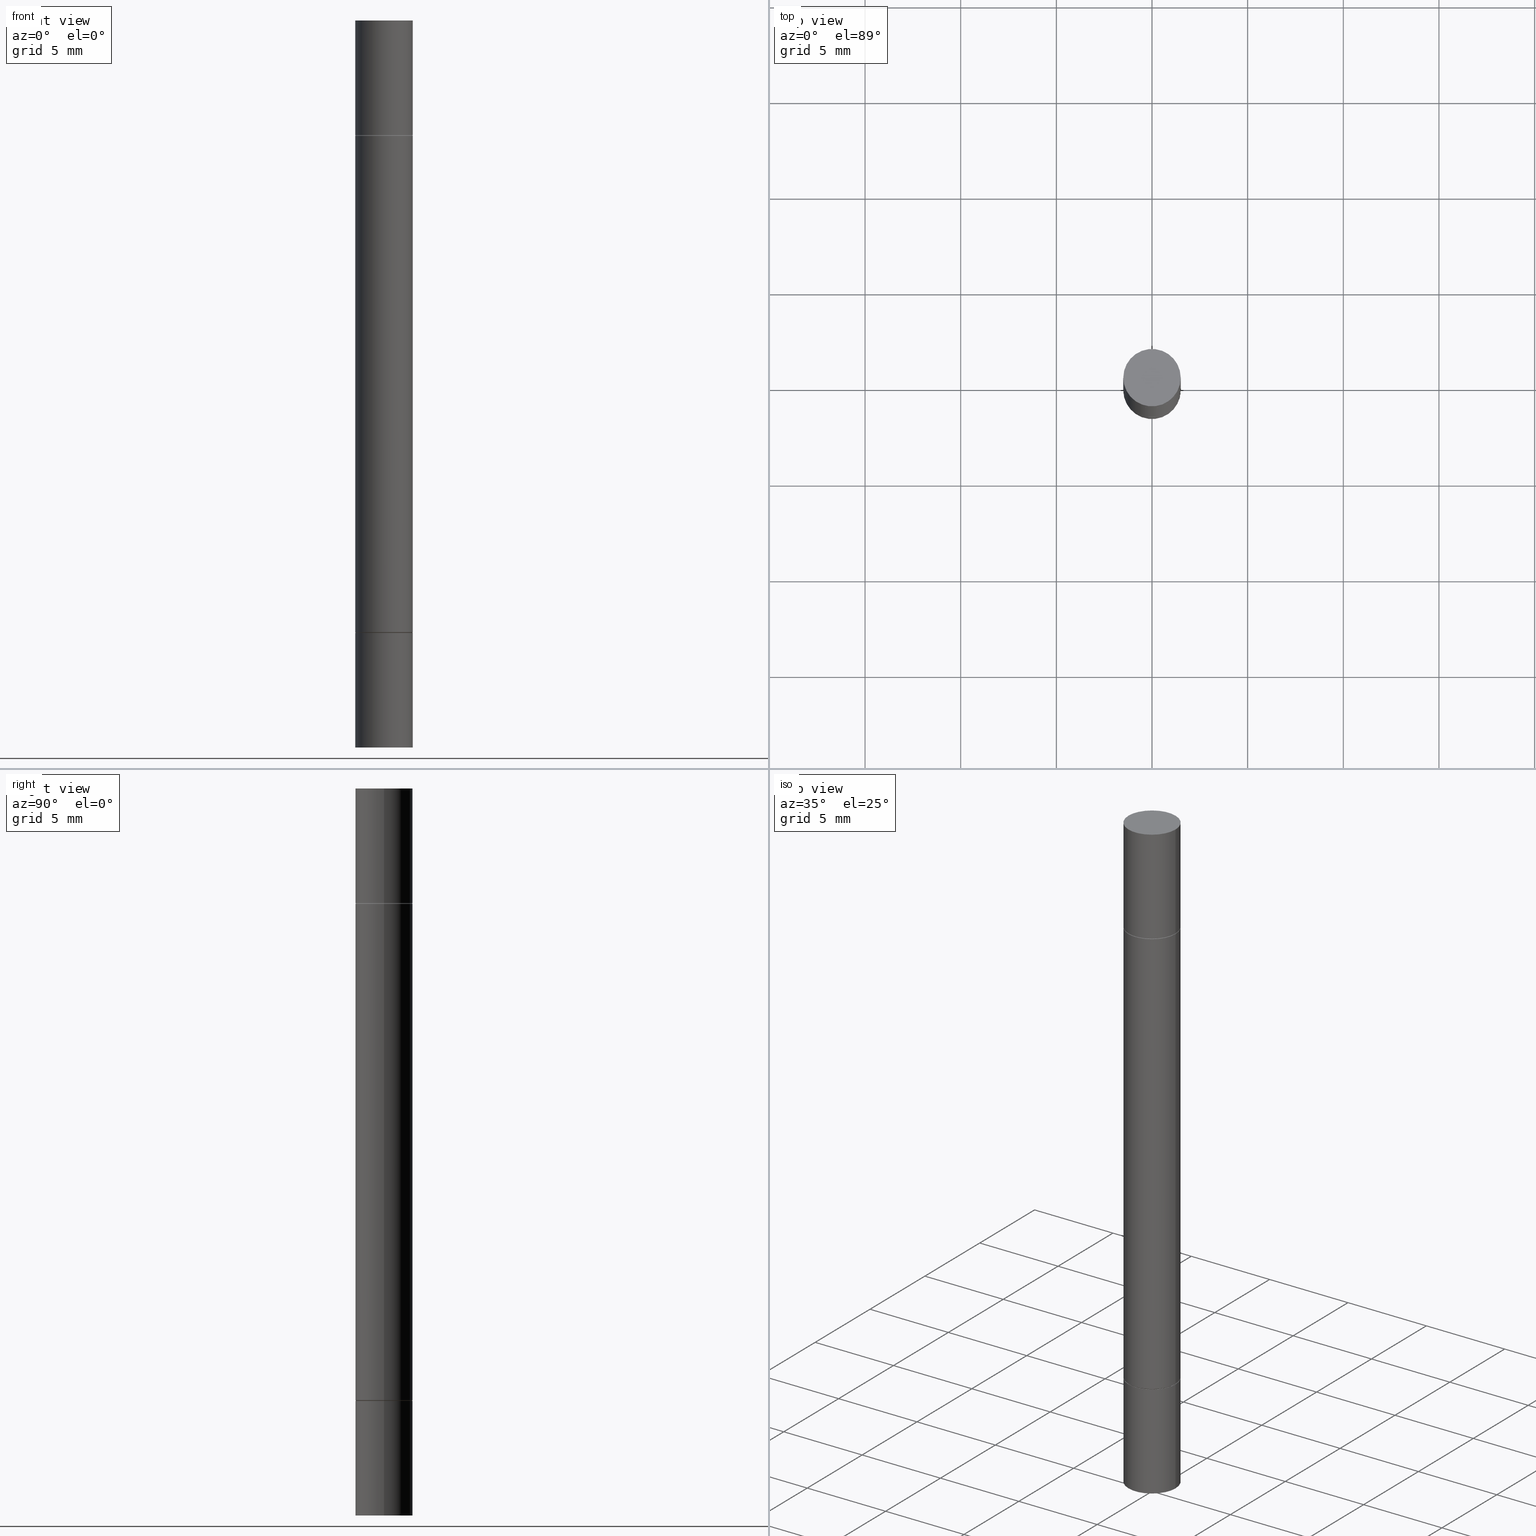
[diagram: canonical four-view strip — front | top / right | iso, engineering-drawing reading convention]
A machine part, canonical four-view strip (front | top / right | iso — engineering-drawing reading convention). The complete STEP part file that produces these views, byte-faithful:
ISO-10303-21;
HEADER;
FILE_DESCRIPTION (( 'STEP AP203' ),
    '1' );
FILE_NAME ('48930.STEP',
    '2024-03-04T15:48:57',
    ( '' ),
    ( '' ),
    'SwSTEP 2.0',
    'SolidWorks 2023',
    '' );
FILE_SCHEMA (( 'CONFIG_CONTROL_DESIGN' ));
ENDSEC;

DATA;
#1 = PERSON_AND_ORGANIZATION ( #473, #292 ) ;
#2 = DIRECTION ( 'NONE',  ( 0.000000000000000000, 0.000000000000000000, 1.000000000000000000 ) ) ;
#3 = FACE_OUTER_BOUND ( 'NONE', #55, .T. ) ;
#4 = DIRECTION ( 'NONE',  ( 1.000000000000000000, -6.982962677686265922E-15, 0.000000000000000000 ) ) ;
#5 = APPROVAL_DATE_TIME ( #542, #309 ) ;
#6 = ADVANCED_FACE ( 'NONE', ( #567 ), #140, .T. ) ;
#7 = CARTESIAN_POINT ( 'NONE',  ( -0.05805000000000001131, -3.981148826351518144E-15, -1.259899999999999798 ) ) ;
#8 = ORIENTED_EDGE ( 'NONE', *, *, #368, .F. ) ;
#9 = AXIS2_PLACEMENT_3D ( 'NONE', #632, #99, #156 ) ;
#10 = CIRCLE ( 'NONE', #403, 0.05904999999999998445 ) ;
#11 = VERTEX_POINT ( 'NONE', #38 ) ;
#12 = DIRECTION ( 'NONE',  ( -0.000000000000000000, -3.492185875197449130E-15, -1.000000000000000000 ) ) ;
#13 = PERSON_AND_ORGANIZATION_ROLE ( 'creator' ) ;
#14 = CARTESIAN_POINT ( 'NONE',  ( -0.05805000000000001131, -3.986447280699740546E-15, -1.259899999999999798 ) ) ;
#15 = ORIENTED_EDGE ( 'NONE', *, *, #216, .F. ) ;
#16 = VERTEX_POINT ( 'NONE', #149 ) ;
#17 = DIRECTION ( 'NONE',  ( 1.000000000000000000, -6.982962677686270655E-15, 0.000000000000000000 ) ) ;
#18 = EDGE_LOOP ( 'NONE', ( #69, #639 ) ) ;
#19 = ORIENTED_EDGE ( 'NONE', *, *, #586, .F. ) ;
#20 = LINE ( 'NONE', #14, #255 ) ;
#21 = ADVANCED_FACE ( 'NONE', ( #247 ), #296, .F. ) ;
#22 = VERTEX_POINT ( 'NONE', #405 ) ;
#23 = AXIS2_PLACEMENT_3D ( 'NONE', #174, #374, #210 ) ;
#24 = EDGE_LOOP ( 'NONE', ( #658, #116, #179, #341 ) ) ;
#25 = CIRCLE ( 'NONE', #616, 0.05805000000000001131 ) ;
#26 = DIRECTION ( 'NONE',  ( 2.445468806185136597E-29, 3.492890411551752677E-15, 1.000000000000000000 ) ) ;
#27 = ORIENTED_EDGE ( 'NONE', *, *, #391, .T. ) ;
#28 = ORIENTED_EDGE ( 'NONE', *, *, #628, .T. ) ;
#29 = FACE_OUTER_BOUND ( 'NONE', #395, .T. ) ;
#30 = DIRECTION ( 'NONE',  ( -2.445468806185136597E-29, 3.491481338843145583E-15, 1.000000000000000000 ) ) ;
#31 = AXIS2_PLACEMENT_3D ( 'NONE', #415, #98, #262 ) ;
#32 = AXIS2_PLACEMENT_3D ( 'NONE', #130, #531, #380 ) ;
#33 = LINE ( 'NONE', #246, #676 ) ;
#34 = EDGE_LOOP ( 'NONE', ( #166, #124, #554, #399 ) ) ;
#35 = FACE_OUTER_BOUND ( 'NONE', #385, .T. ) ;
#36 = DIRECTION ( 'NONE',  ( 2.445468806185136597E-29, 3.492890411551752677E-15, 1.000000000000000000 ) ) ;
#37 = CC_DESIGN_DATE_AND_TIME_ASSIGNMENT ( #158, #154, ( #229 ) ) ;
#38 = CARTESIAN_POINT ( 'NONE',  ( -0.05905000000000001914, -6.343893996178441579E-18, 2.731847993664278010E-16 ) ) ;
#39 = DIRECTION ( 'NONE',  ( 1.000000000000000000, -6.982962677686266711E-15, 0.000000000000000000 ) ) ;
#40 = CARTESIAN_POINT ( 'NONE',  ( 3.081046148912652946E-29, -8.239666583688507762E-16, -0.2361999999999997990 ) ) ;
#41 = AXIS2_PLACEMENT_3D ( 'NONE', #552, #534, #180 ) ;
#42 = PRODUCT_DEFINITION_SHAPE ( 'NONE', 'NONE',  #209 ) ;
#43 = EDGE_CURVE ( 'NONE', #92, #219, #512, .T. ) ;
#44 = ADVANCED_FACE ( 'NONE', ( #356 ), #196, .T. ) ;
#45 = EDGE_CURVE ( 'NONE', #495, #550, #80, .T. ) ;
#46 = CARTESIAN_POINT ( 'NONE',  ( 3.081046148912652946E-29, -8.239666583688507762E-16, -0.2361999999999997990 ) ) ;
#47 = DATE_AND_TIME ( #118, #288 ) ;
#48 = AXIS2_PLACEMENT_3D ( 'NONE', #265, #378, #645 ) ;
#49 = CARTESIAN_POINT ( 'NONE',  ( 3.081046148912652946E-29, -8.239666583688507762E-16, -0.2361999999999997990 ) ) ;
#50 = CARTESIAN_POINT ( 'NONE',  ( 3.658665880933582389E-29, -5.223605231043229660E-15, -1.496099999999999985 ) ) ;
#51 = PERSON_AND_ORGANIZATION_ROLE ( 'creator' ) ;
#52 = DIRECTION ( 'NONE',  ( 2.445468806185136597E-29, 3.492890411551752677E-15, 1.000000000000000000 ) ) ;
#53 = COORDINATED_UNIVERSAL_TIME_OFFSET ( 5, 0, .BEHIND. ) ;
#54 = CARTESIAN_POINT ( 'NONE',  ( -0.05805000000000001131, -4.257147495982133227E-16, -0.2361999999999997990 ) ) ;
#55 = EDGE_LOOP ( 'NONE', ( #173, #640, #436, #8 ) ) ;
#56 = DIRECTION ( 'NONE',  ( 1.000000000000000000, -6.982962677686266711E-15, 0.000000000000000000 ) ) ;
#57 = PERSON_AND_ORGANIZATION_ROLE ( 'design_supplier' ) ;
#58 = FACE_OUTER_BOUND ( 'NONE', #34, .T. ) ;
#59 = ORIENTED_EDGE ( 'NONE', *, *, #400, .F. ) ;
#60 = VECTOR ( 'NONE', #599, 39.37007874015748143 ) ;
#61 = ORIENTED_EDGE ( 'NONE', *, *, #506, .F. ) ;
#62 = CARTESIAN_POINT ( 'NONE',  ( 1.829332940466790914E-29, -2.611802615521614436E-15, -0.7480499999999997707 ) ) ;
#63 = CARTESIAN_POINT ( 'NONE',  ( 0.05805000000000001131, -1.229327641808538597E-15, -0.2361999999999997990 ) ) ;
#64 = VERTEX_POINT ( 'NONE', #250 ) ;
#65 = ORIENTED_EDGE ( 'NONE', *, *, #420, .T. ) ;
#66 = ADVANCED_FACE ( 'NONE', ( #462 ), #411, .T. ) ;
#67 = CARTESIAN_POINT ( 'NONE',  ( 0.05904999999999998445, -1.239803494897776754E-15, -0.2371999999999998554 ) ) ;
#68 = ORIENTED_EDGE ( 'NONE', *, *, #204, .T. ) ;
#69 = ORIENTED_EDGE ( 'NONE', *, *, #563, .F. ) ;
#70 = DIRECTION ( 'NONE',  ( -1.000000000000000000, 6.982962677686265922E-15, -9.839502134516470631E-33 ) ) ;
#71 = VERTEX_POINT ( 'NONE', #559 ) ;
#72 = VECTOR ( 'NONE', #451, 39.37007874015748143 ) ;
#73 = ORIENTED_EDGE ( 'NONE', *, *, #354, .T. ) ;
#74 = CIRCLE ( 'NONE', #276, 0.05905000000000001914 ) ;
#75 = DIRECTION ( 'NONE',  ( -2.445468806185136877E-29, -3.492890411551753071E-15, -1.000000000000000000 ) ) ;
#76 = CARTESIAN_POINT ( 'NONE',  ( 0.000000000000000000, -5.224659287882902542E-15, -1.496099999999999541 ) ) ;
#77 = DIRECTION ( 'NONE',  ( 1.000000000000000000, -6.982962677686266711E-15, 0.000000000000000000 ) ) ;
#78 = EDGE_LOOP ( 'NONE', ( #650, #346, #115, #445 ) ) ;
#79 = DIRECTION ( 'NONE',  ( 2.445468806185136597E-29, 3.492890411551752677E-15, 1.000000000000000000 ) ) ;
#80 = LINE ( 'NONE', #301, #358 ) ;
#81 = AXIS2_PLACEMENT_3D ( 'NONE', #665, #322, #150 ) ;
#82 = AXIS2_PLACEMENT_3D ( 'NONE', #187, #305, #515 ) ;
#83 = CC_DESIGN_DATE_AND_TIME_ASSIGNMENT ( #47, #169, ( #209 ) ) ;
#84 = EDGE_CURVE ( 'NONE', #16, #504, #90, .T. ) ;
#85 = PLANE ( 'NONE',  #82 ) ;
#86 = VERTEX_POINT ( 'NONE', #574 ) ;
#87 = CARTESIAN_POINT ( 'NONE',  ( 3.081046148912652946E-29, -8.239666583688507762E-16, -0.2361999999999997990 ) ) ;
#88 = UNCERTAINTY_MEASURE_WITH_UNIT (LENGTH_MEASURE( 1.000000000000000082E-05 ), #679, 'distance_accuracy_value', 'NONE');
#89 = DIRECTION ( 'NONE',  ( 1.000000000000000000, -6.982962677686266711E-15, 0.000000000000000000 ) ) ;
#90 = LINE ( 'NONE', #236, #72 ) ;
#91 = CARTESIAN_POINT ( 'NONE',  ( 3.081046148912652946E-29, -8.239666583688507762E-16, -0.2361999999999997990 ) ) ;
#92 = VERTEX_POINT ( 'NONE', #520 ) ;
#93 = AXIS2_PLACEMENT_3D ( 'NONE', #46, #460, #359 ) ;
#94 = AXIS2_PLACEMENT_3D ( 'NONE', #360, #569, #518 ) ;
#95 = APPLICATION_PROTOCOL_DEFINITION ( 'international standard', 'config_control_design', 1994, #549 ) ;
#96 = ADVANCED_FACE ( 'NONE', ( #365 ), #426, .T. ) ;
#97 = APPLICATION_PROTOCOL_DEFINITION ( 'international standard', 'config_control_design', 1994, #362 ) ;
#98 = DIRECTION ( 'NONE',  ( -2.445468806185136597E-29, -3.492890411551752677E-15, -1.000000000000000000 ) ) ;
#99 = DIRECTION ( 'NONE',  ( -2.438088387897959769E-29, -3.492890411551753071E-15, -1.000000000000000000 ) ) ;
#100 = PERSON_AND_ORGANIZATION ( #473, #292 ) ;
#101 = LINE ( 'NONE', #203, #261 ) ;
#102 = DIRECTION ( 'NONE',  ( 1.000000000000000000, -6.982962677686265922E-15, 0.000000000000000000 ) ) ;
#103 = ORIENTED_EDGE ( 'NONE', *, *, #459, .F. ) ;
#104 = CC_DESIGN_APPROVAL ( #525, ( #229 ) ) ;
#105 = APPROVAL ( #294, 'UNSPECIFIED' ) ;
#106 =( NAMED_UNIT ( * ) PLANE_ANGLE_UNIT ( ) SI_UNIT ( $, .RADIAN. ) );
#107 =( GEOMETRIC_REPRESENTATION_CONTEXT ( 3 ) GLOBAL_UNCERTAINTY_ASSIGNED_CONTEXT ( ( #88 ) ) GLOBAL_UNIT_ASSIGNED_CONTEXT ( ( #679, #106, #419 ) ) REPRESENTATION_CONTEXT ( 'NONE', 'WORKASPACE' ) );
#108 = DIRECTION ( 'NONE',  ( -2.445468806185136877E-29, -3.492890411551753071E-15, -1.000000000000000000 ) ) ;
#109 = DIRECTION ( 'NONE',  ( 2.445468806185136597E-29, 3.492890411551752677E-15, 1.000000000000000000 ) ) ;
#110 = ORIENTED_EDGE ( 'NONE', *, *, #391, .F. ) ;
#111 = FACE_OUTER_BOUND ( 'NONE', #537, .T. ) ;
#112 = APPROVAL_DATE_TIME ( #267, #105 ) ;
#113 = MANIFOLD_SOLID_BREP ( 'Body-Move/Copy2[1]', #230 ) ;
#114 = CARTESIAN_POINT ( 'NONE',  ( -0.05805000000000001131, -4.240309458051036863E-16, -0.2361999999999997990 ) ) ;
#115 = ORIENTED_EDGE ( 'NONE', *, *, #354, .F. ) ;
#116 = ORIENTED_EDGE ( 'NONE', *, *, #479, .F. ) ;
#117 = MANIFOLD_SOLID_BREP ( 'Combine1', #313 ) ;
#118 = CALENDAR_DATE ( 2024, 4, 3 ) ;
#119 = CC_DESIGN_SECURITY_CLASSIFICATION ( #229, ( #456 ) ) ;
#120 = CONICAL_SURFACE ( 'NONE', #536, 0.05805000000000001131, 0.7853981633973970977 ) ;
#121 = DIRECTION ( 'NONE',  ( -2.445468806185136597E-29, 3.491481338843145583E-15, 1.000000000000000000 ) ) ;
#122 = EDGE_LOOP ( 'NONE', ( #278, #386 ) ) ;
#123 = AXIS2_PLACEMENT_3D ( 'NONE', #231, #450, #17 ) ;
#124 = ORIENTED_EDGE ( 'NONE', *, *, #506, .T. ) ;
#125 = ADVANCED_FACE ( 'NONE', ( #253 ), #466, .F. ) ;
#126 = CARTESIAN_POINT ( 'NONE',  ( 3.081046148912652946E-29, -8.239666583688507762E-16, -0.2361999999999997990 ) ) ;
#127 = DIRECTION ( 'NONE',  ( 1.000000000000000000, -6.982962677686266711E-15, 0.000000000000000000 ) ) ;
#128 = ORIENTED_EDGE ( 'NONE', *, *, #493, .F. ) ;
#129 = ORIENTED_EDGE ( 'NONE', *, *, #45, .F. ) ;
#130 = CARTESIAN_POINT ( 'NONE',  ( 3.078600680106467904E-29, -8.274595487804013404E-16, -0.2371999999999998554 ) ) ;
#131 = ORIENTED_EDGE ( 'NONE', *, *, #271, .T. ) ;
#132 = VERTEX_POINT ( 'NONE', #652 ) ;
#133 = CARTESIAN_POINT ( 'NONE',  ( 4.123439461174049462E-16, 0.05904999999999561988, -1.259900000000000020 ) ) ;
#134 = APPROVAL_PERSON_ORGANIZATION ( #1, #309, #212 ) ;
#135 = DIRECTION ( 'NONE',  ( -2.445468806185136597E-29, -3.492890411551752677E-15, -1.000000000000000000 ) ) ;
#136 = CIRCLE ( 'NONE', #214, 0.05905000000000001914 ) ;
#137 = AXIS2_PLACEMENT_3D ( 'NONE', #139, #560, #195 ) ;
#138 = ADVANCED_FACE ( 'NONE', ( #238 ), #609, .T. ) ;
#139 = CARTESIAN_POINT ( 'NONE',  ( 0.000000000000000000, -5.224659287882902542E-15, -1.496099999999999541 ) ) ;
#140 = CYLINDRICAL_SURFACE ( 'NONE', #649, 0.05905000000000001914 ) ;
#141 = CARTESIAN_POINT ( 'NONE',  ( -0.05905000000000001914, -4.391685799459515247E-15, -1.259899999999999798 ) ) ;
#142 = DIRECTION ( 'NONE',  ( -2.445468806185136877E-29, -3.492890411551753071E-15, -1.000000000000000000 ) ) ;
#143 = DIRECTION ( 'NONE',  ( 1.000000000000000000, -6.982962677686258033E-15, 0.000000000000000000 ) ) ;
#144 = CARTESIAN_POINT ( 'NONE',  ( 0.05905000000000001914, -4.112898892776993753E-16, 2.731847993664263218E-16 ) ) ;
#145 = CIRCLE ( 'NONE', #433, 0.05805000000000001131 ) ;
#146 = EDGE_CURVE ( 'NONE', #71, #22, #275, .T. ) ;
#147 = AXIS2_PLACEMENT_3D ( 'NONE', #431, #307, #39 ) ;
#148 = DIRECTION ( 'NONE',  ( 1.000000000000000000, -6.982962677686265922E-15, 4.876176775795935793E-29 ) ) ;
#149 = CARTESIAN_POINT ( 'NONE',  ( 0.05805000000000001131, -1.229327641808538597E-15, -0.2361999999999997990 ) ) ;
#150 = DIRECTION ( 'NONE',  ( 1.000000000000000000, -6.982962677686266711E-15, 0.000000000000000000 ) ) ;
#151 = EDGE_CURVE ( 'NONE', #11, #291, #321, .T. ) ;
#152 = AXIS2_PLACEMENT_3D ( 'NONE', #126, #540, #4 ) ;
#153 = CIRCLE ( 'NONE', #206, 0.05805000000000001131 ) ;
#154 = DATE_TIME_ROLE ( 'classification_date' ) ;
#155 = DIRECTION ( 'NONE',  ( 2.445468806185136597E-29, 3.492890411551752677E-15, 1.000000000000000000 ) ) ;
#156 = DIRECTION ( 'NONE',  ( 1.000000000000000000, -6.982962677686265922E-15, 9.839502134516470631E-33 ) ) ;
#157 = FACE_OUTER_BOUND ( 'NONE', #122, .T. ) ;
#158 = DATE_AND_TIME ( #631, #519 ) ;
#159 = AXIS2_PLACEMENT_3D ( 'NONE', #349, #618, #570 ) ;
#160 = VECTOR ( 'NONE', #494, 39.37007874015748143 ) ;
#161 = DIRECTION ( 'NONE',  ( 1.000000000000000000, -6.982962677686266711E-15, 0.000000000000000000 ) ) ;
#162 = ORIENTED_EDGE ( 'NONE', *, *, #417, .T. ) ;
#163 = DIRECTION ( 'NONE',  ( -2.445468806185136597E-29, 3.491481338843145583E-15, 1.000000000000000000 ) ) ;
#164 = CALENDAR_DATE ( 2024, 4, 3 ) ;
#165 = DIRECTION ( 'NONE',  ( 2.438088387897959769E-29, 3.492890411551753071E-15, 1.000000000000000000 ) ) ;
#166 = ORIENTED_EDGE ( 'NONE', *, *, #151, .F. ) ;
#167 = ORIENTED_EDGE ( 'NONE', *, *, #319, .F. ) ;
#168 = CARTESIAN_POINT ( 'NONE',  ( 3.081046148912652946E-29, -4.398917338808479031E-15, -1.259899999999999798 ) ) ;
#169 = DATE_TIME_ROLE ( 'creation_date' ) ;
#170 = FACE_OUTER_BOUND ( 'NONE', #281, .T. ) ;
#171 = ADVANCED_FACE ( 'NONE', ( #428 ), #624, .T. ) ;
#172 = ORIENTED_EDGE ( 'NONE', *, *, #470, .F. ) ;
#173 = ORIENTED_EDGE ( 'NONE', *, *, #256, .F. ) ;
#174 = CARTESIAN_POINT ( 'NONE',  ( 4.123439461174106654E-16, 0.05905000000000001914, 0.000000000000000000 ) ) ;
#175 = CLOSED_SHELL ( 'NONE', ( #138, #324, #21, #125, #184, #526 ) ) ;
#176 = CARTESIAN_POINT ( 'NONE',  ( 3.078600680106467904E-29, -4.395425857469635235E-15, -1.258899999999999686 ) ) ;
#177 = ORIENTED_EDGE ( 'NONE', *, *, #463, .F. ) ;
#178 = CIRCLE ( 'NONE', #94, 0.05904999999999991506 ) ;
#179 = ORIENTED_EDGE ( 'NONE', *, *, #43, .T. ) ;
#180 = DIRECTION ( 'NONE',  ( 1.000000000000000000, -6.982962677686270655E-15, 0.000000000000000000 ) ) ;
#181 = ORIENTED_EDGE ( 'NONE', *, *, #216, .T. ) ;
#182 = ORIENTED_EDGE ( 'NONE', *, *, #463, .T. ) ;
#183 = CC_DESIGN_PERSON_AND_ORGANIZATION_ASSIGNMENT ( #369, #424, ( #229 ) ) ;
#184 = ADVANCED_FACE ( 'NONE', ( #678 ), #366, .T. ) ;
#185 = CARTESIAN_POINT ( 'NONE',  ( 3.658665880933582389E-29, 1.054056839674803370E-18, 2.731847993664263218E-16 ) ) ;
#186 = ORIENTED_EDGE ( 'NONE', *, *, #257, .F. ) ;
#187 = CARTESIAN_POINT ( 'NONE',  ( 4.123439461174049462E-16, 0.05904999999999919341, -0.2362000000000000766 ) ) ;
#188 = LOCAL_TIME ( 10, 48, 57.00000000000000000, #434 ) ;
#189 = AXIS2_PLACEMENT_3D ( 'NONE', #76, #135, #562 ) ;
#190 = AXIS2_PLACEMENT_3D ( 'NONE', #185, #26, #226 ) ;
#191 = FACE_OUTER_BOUND ( 'NONE', #381, .T. ) ;
#192 = DIRECTION ( 'NONE',  ( 0.000000000000000000, 1.000000000000000000, -3.492185875197449524E-15 ) ) ;
#193 = ADVANCED_FACE ( 'NONE', ( #157 ), #636, .T. ) ;
#194 = DIRECTION ( 'NONE',  ( -2.445468806185136597E-29, 3.491481338843145583E-15, 1.000000000000000000 ) ) ;
#195 = DIRECTION ( 'NONE',  ( 1.000000000000000000, -6.982962677686266711E-15, 0.000000000000000000 ) ) ;
#196 = CYLINDRICAL_SURFACE ( 'NONE', #189, 0.05905000000000001914 ) ;
#197 = ADVANCED_FACE ( 'NONE', ( #111 ), #528, .T. ) ;
#198 = FACE_OUTER_BOUND ( 'NONE', #485, .T. ) ;
#199 = FACE_OUTER_BOUND ( 'NONE', #444, .T. ) ;
#200 = CIRCLE ( 'NONE', #467, 0.05905000000000001914 ) ;
#201 = FACE_OUTER_BOUND ( 'NONE', #505, .T. ) ;
#202 = EDGE_CURVE ( 'NONE', #550, #86, #593, .T. ) ;
#203 = CARTESIAN_POINT ( 'NONE',  ( 0.05905000000000001914, -5.637003234000276674E-15, -1.496099999999999541 ) ) ;
#204 = EDGE_CURVE ( 'NONE', #345, #498, #145, .T. ) ;
#205 = CIRCLE ( 'NONE', #674, 0.05905000000000001914 ) ;
#206 = AXIS2_PLACEMENT_3D ( 'NONE', #503, #653, #336 ) ;
#207 = SHAPE_DEFINITION_REPRESENTATION ( #42, #283 ) ;
#208 = CARTESIAN_POINT ( 'NONE',  ( 3.078600680106467904E-29, -8.274595487804013404E-16, -0.2371999999999998554 ) ) ;
#209 = PRODUCT_DEFINITION ( 'UNKNOWN', '', #456, #615 ) ;
#210 = DIRECTION ( 'NONE',  ( -1.000000000000000000, 6.982962677686265922E-15, -9.839502134516470631E-33 ) ) ;
#211 = LINE ( 'NONE', #568, #509 ) ;
#212 = APPROVAL_ROLE ( '' ) ;
#213 = CYLINDRICAL_SURFACE ( 'NONE', #147, 0.05904999999999991506 ) ;
#214 = AXIS2_PLACEMENT_3D ( 'NONE', #248, #363, #260 ) ;
#215 = AXIS2_PLACEMENT_3D ( 'NONE', #352, #30, #457 ) ;
#216 = EDGE_CURVE ( 'NONE', #232, #92, #200, .T. ) ;
#217 = DIRECTION ( 'NONE',  ( 2.445468806185136597E-29, 3.492890411551752677E-15, 1.000000000000000000 ) ) ;
#218 = ORIENTED_EDGE ( 'NONE', *, *, #417, .F. ) ;
#219 = VERTEX_POINT ( 'NONE', #413 ) ;
#220 = PERSON_AND_ORGANIZATION ( #473, #292 ) ;
#221 = ADVANCED_FACE ( 'NONE', ( #513 ), #630, .F. ) ;
#222 = DIRECTION ( 'NONE',  ( -0.7071067811865112684, 7.493145998870223209E-15, 0.7071067811865837660 ) ) ;
#223 = ORIENTED_EDGE ( 'NONE', *, *, #343, .F. ) ;
#224 = ORIENTED_EDGE ( 'NONE', *, *, #202, .F. ) ;
#225 = DIRECTION ( 'NONE',  ( 1.000000000000000000, -6.982962677686270655E-15, 0.000000000000000000 ) ) ;
#226 = DIRECTION ( 'NONE',  ( 1.000000000000000000, -6.982962677686266711E-15, 0.000000000000000000 ) ) ;
#227 = ORIENTED_EDGE ( 'NONE', *, *, #43, .F. ) ;
#228 = EDGE_LOOP ( 'NONE', ( #282, #28 ) ) ;
#229 = SECURITY_CLASSIFICATION ( '', '', #379 ) ;
#230 = CLOSED_SHELL ( 'NONE', ( #522, #66, #671, #6 ) ) ;
#231 = CARTESIAN_POINT ( 'NONE',  ( 0.000000000000000000, -5.224659287882902542E-15, -1.496099999999999541 ) ) ;
#232 = VERTEX_POINT ( 'NONE', #376 ) ;
#233 = AXIS2_PLACEMENT_3D ( 'NONE', #558, #249, #77 ) ;
#234 = ORIENTED_EDGE ( 'NONE', *, *, #271, .F. ) ;
#235 = LINE ( 'NONE', #63, #60 ) ;
#236 = CARTESIAN_POINT ( 'NONE',  ( 0.05805000000000001131, -1.229327641808538597E-15, -0.2361999999999997990 ) ) ;
#237 = VERTEX_POINT ( 'NONE', #318 ) ;
#238 = FACE_OUTER_BOUND ( 'NONE', #553, .T. ) ;
#239 = CARTESIAN_POINT ( 'NONE',  ( -0.05905000000000001914, -4.819546881114493773E-15, -1.496099999999999541 ) ) ;
#240 = CYLINDRICAL_SURFACE ( 'NONE', #137, 0.05904999999999991506 ) ;
#241 = DIRECTION ( 'NONE',  ( 0.000000000000000000, 3.492185875197449524E-15, 1.000000000000000000 ) ) ;
#242 = AXIS2_PLACEMENT_3D ( 'NONE', #677, #266, #478 ) ;
#243 = CIRCLE ( 'NONE', #242, 0.05904999999999998445 ) ;
#244 = AXIS2_PLACEMENT_3D ( 'NONE', #176, #121, #328 ) ;
#245 = EDGE_CURVE ( 'NONE', #232, #132, #475, .T. ) ;
#246 = CARTESIAN_POINT ( 'NONE',  ( -0.05904999999999991506, -4.819546881114493773E-15, -1.496099999999999541 ) ) ;
#247 = FACE_OUTER_BOUND ( 'NONE', #228, .T. ) ;
#248 = CARTESIAN_POINT ( 'NONE',  ( 3.658665880933582389E-29, -5.223605231043229660E-15, -1.496099999999999985 ) ) ;
#249 = DIRECTION ( 'NONE',  ( -2.445468806185136597E-29, -3.492890411551752677E-15, -1.000000000000000000 ) ) ;
#250 = CARTESIAN_POINT ( 'NONE',  ( -0.05904999999999998445, -2.206690208753203299E-15, -1.258899999999999686 ) ) ;
#251 = DIRECTION ( 'NONE',  ( -1.000000000000000000, 6.982962677686265922E-15, -9.839502134516470631E-33 ) ) ;
#252 = DIRECTION ( 'NONE',  ( 1.000000000000000000, -6.982962677686265922E-15, 0.000000000000000000 ) ) ;
#253 = FACE_OUTER_BOUND ( 'NONE', #407, .T. ) ;
#254 = CIRCLE ( 'NONE', #81, 0.05905000000000001914 ) ;
#255 = VECTOR ( 'NONE', #222, 39.37007874015748143 ) ;
#256 = EDGE_CURVE ( 'NONE', #237, #504, #556, .T. ) ;
#257 = EDGE_CURVE ( 'NONE', #219, #132, #254, .T. ) ;
#258 = MECHANICAL_CONTEXT ( 'NONE', #549, 'mechanical' ) ;
#259 = DATE_AND_TIME ( #489, #272 ) ;
#260 = DIRECTION ( 'NONE',  ( 1.000000000000000000, -6.982962677686270655E-15, 0.000000000000000000 ) ) ;
#261 = VECTOR ( 'NONE', #416, 39.37007874015748143 ) ;
#262 = DIRECTION ( 'NONE',  ( 1.000000000000000000, -6.982962677686270655E-15, 0.000000000000000000 ) ) ;
#263 = ADVANCED_FACE ( 'NONE', ( #35 ), #634, .T. ) ;
#264 = DIRECTION ( 'NONE',  ( -2.445468806185136597E-29, -3.492890411551752677E-15, -1.000000000000000000 ) ) ;
#265 = CARTESIAN_POINT ( 'NONE',  ( 3.081046148912652946E-29, -8.239666583688507762E-16, -0.2361999999999997990 ) ) ;
#266 = DIRECTION ( 'NONE',  ( 2.445468806185136597E-29, 3.492890411551752677E-15, 1.000000000000000000 ) ) ;
#267 = DATE_AND_TIME ( #164, #486 ) ;
#268 = CYLINDRICAL_SURFACE ( 'NONE', #123, 0.05905000000000001914 ) ;
#269 = ORIENTED_EDGE ( 'NONE', *, *, #84, .T. ) ;
#270 = ORIENTED_EDGE ( 'NONE', *, *, #429, .T. ) ;
#271 = EDGE_CURVE ( 'NONE', #16, #382, #422, .T. ) ;
#272 = LOCAL_TIME ( 10, 48, 57.00000000000000000, #590 ) ;
#273 = CARTESIAN_POINT ( 'NONE',  ( 3.081046148912652946E-29, -4.398917338808479031E-15, -1.259899999999999798 ) ) ;
#274 = APPROVAL_ROLE ( '' ) ;
#275 = CIRCLE ( 'NONE', #564, 0.05905000000000001914 ) ;
#276 = AXIS2_PLACEMENT_3D ( 'NONE', #285, #109, #435 ) ;
#277 = CARTESIAN_POINT ( 'NONE',  ( 0.05805000000000001131, -4.804278322248167148E-15, -1.259899999999999798 ) ) ;
#278 = ORIENTED_EDGE ( 'NONE', *, *, #400, .T. ) ;
#279 = ORIENTED_EDGE ( 'NONE', *, *, #351, .F. ) ;
#280 = LINE ( 'NONE', #277, #557 ) ;
#281 = EDGE_LOOP ( 'NONE', ( #15, #594, #182, #227 ) ) ;
#282 = ORIENTED_EDGE ( 'NONE', *, *, #202, .T. ) ;
#283 = ADVANCED_BREP_SHAPE_REPRESENTATION ( '48930', ( #113, #364, #589, #339, #117, #580 ), #107 ) ;
#284 = CC_DESIGN_PERSON_AND_ORGANIZATION_ASSIGNMENT ( #430, #13, ( #456 ) ) ;
#285 = CARTESIAN_POINT ( 'NONE',  ( 3.658665880933582389E-29, 1.054056839674803370E-18, 2.731847993664263218E-16 ) ) ;
#286 = ORIENTED_EDGE ( 'NONE', *, *, #443, .T. ) ;
#287 = VERTEX_POINT ( 'NONE', #409 ) ;
#288 = LOCAL_TIME ( 10, 48, 57.00000000000000000, #641 ) ;
#289 = CLOSED_SHELL ( 'NONE', ( #393, #193, #622, #44 ) ) ;
#290 = LINE ( 'NONE', #490, #160 ) ;
#291 = VERTEX_POINT ( 'NONE', #144 ) ;
#292 = ORGANIZATION ( 'UNSPECIFIED', 'UNSPECIFIED', '' ) ;
#293 = ORIENTED_EDGE ( 'NONE', *, *, #480, .F. ) ;
#294 = APPROVAL_STATUS ( 'not_yet_approved' ) ;
#295 = LINE ( 'NONE', #561, #651 ) ;
#296 = PLANE ( 'NONE',  #412 ) ;
#297 = CARTESIAN_POINT ( 'NONE',  ( 0.05905000000000001914, -1.236310604486225006E-15, -0.2361999999999997990 ) ) ;
#298 = DIRECTION ( 'NONE',  ( 1.000000000000000000, -6.982962677686266711E-15, 4.876176775795935793E-29 ) ) ;
#299 = ADVANCED_FACE ( 'NONE', ( #578 ), #575, .F. ) ;
#300 = DIRECTION ( 'NONE',  ( 2.445468806185136597E-29, 3.492890411551752677E-15, 1.000000000000000000 ) ) ;
#301 = CARTESIAN_POINT ( 'NONE',  ( 0.05904999999999991506, -5.637003234000275885E-15, -1.496099999999999541 ) ) ;
#302 = AXIS2_PLACEMENT_3D ( 'NONE', #87, #155, #102 ) ;
#303 = AXIS2_PLACEMENT_3D ( 'NONE', #308, #666, #404 ) ;
#304 = DIRECTION ( 'NONE',  ( -2.445468806185136597E-29, 3.491481338843145583E-15, 1.000000000000000000 ) ) ;
#305 = DIRECTION ( 'NONE',  ( 2.438088387897959769E-29, 3.492890411551753071E-15, 1.000000000000000000 ) ) ;
#306 = CARTESIAN_POINT ( 'NONE',  ( 0.05905000000000001914, -5.637003234000276674E-15, -1.496099999999999541 ) ) ;
#307 = DIRECTION ( 'NONE',  ( -2.445468806185136597E-29, -3.492890411551752677E-15, -1.000000000000000000 ) ) ;
#308 = CARTESIAN_POINT ( 'NONE',  ( 3.081046148912652946E-29, -8.239666583688507762E-16, -0.2361999999999997990 ) ) ;
#309 = APPROVAL ( #673, 'UNSPECIFIED' ) ;
#310 = EDGE_CURVE ( 'NONE', #22, #71, #136, .T. ) ;
#311 = DIRECTION ( 'NONE',  ( -2.438088387897959769E-29, -3.492890411551753071E-15, -1.000000000000000000 ) ) ;
#312 = CC_DESIGN_APPROVAL ( #309, ( #456 ) ) ;
#313 = CLOSED_SHELL ( 'NONE', ( #197, #361, #171, #221, #576, #514, #263, #612 ) ) ;
#314 = AXIS2_PLACEMENT_3D ( 'NONE', #62, #12, #629 ) ;
#315 = AXIS2_PLACEMENT_3D ( 'NONE', #664, #660, #148 ) ;
#316 = DIRECTION ( 'NONE',  ( 1.000000000000000000, -6.982962677686265922E-15, 9.839502134516470631E-33 ) ) ;
#317 = EDGE_CURVE ( 'NONE', #472, #535, #521, .T. ) ;
#318 = CARTESIAN_POINT ( 'NONE',  ( -0.05904999999999998445, -4.223471420119940006E-16, -0.2371999999999998554 ) ) ;
#319 = EDGE_CURVE ( 'NONE', #643, #492, #401, .T. ) ;
#320 = CARTESIAN_POINT ( 'NONE',  ( 4.123439461174049462E-16, 0.05904999999999919341, -0.2362000000000000766 ) ) ;
#321 = CIRCLE ( 'NONE', #662, 0.05905000000000001914 ) ;
#322 = DIRECTION ( 'NONE',  ( 2.445468806185136597E-29, 3.492890411551752677E-15, 1.000000000000000000 ) ) ;
#323 = LINE ( 'NONE', #389, #626 ) ;
#324 = ADVANCED_FACE ( 'NONE', ( #198 ), #120, .T. ) ;
#325 = ORIENTED_EDGE ( 'NONE', *, *, #538, .F. ) ;
#326 = ORIENTED_EDGE ( 'NONE', *, *, #429, .F. ) ;
#327 = DIRECTION ( 'NONE',  ( -2.445468806185136597E-29, 3.491481338843145583E-15, 1.000000000000000000 ) ) ;
#328 = DIRECTION ( 'NONE',  ( 1.000000000000000000, -6.982962677686258033E-15, 0.000000000000000000 ) ) ;
#329 = EDGE_LOOP ( 'NONE', ( #131, #544 ) ) ;
#330 = EDGE_LOOP ( 'NONE', ( #439, #598 ) ) ;
#331 = DIRECTION ( 'NONE',  ( -2.445468806185136597E-29, -3.492890411551752677E-15, -1.000000000000000000 ) ) ;
#332 = VECTOR ( 'NONE', #527, 39.37007874015748143 ) ;
#333 = CALENDAR_DATE ( 2024, 4, 3 ) ;
#334 = CIRCLE ( 'NONE', #388, 0.05904999999999998445 ) ;
#335 = AXIS2_PLACEMENT_3D ( 'NONE', #638, #484, #646 ) ;
#336 = DIRECTION ( 'NONE',  ( 1.000000000000000000, -6.982962677686270655E-15, 0.000000000000000000 ) ) ;
#337 = ORIENTED_EDGE ( 'NONE', *, *, #620, .F. ) ;
#338 = ORIENTED_EDGE ( 'NONE', *, *, #84, .F. ) ;
#339 = MANIFOLD_SOLID_BREP ( 'Mirror1[4]', #387 ) ;
#340 = CARTESIAN_POINT ( 'NONE',  ( 4.123439461174106654E-16, 0.05905000000000001914, 0.000000000000000000 ) ) ;
#341 = ORIENTED_EDGE ( 'NONE', *, *, #257, .T. ) ;
#342 = ORIENTED_EDGE ( 'NONE', *, *, #479, .T. ) ;
#343 = EDGE_CURVE ( 'NONE', #495, #287, #243, .T. ) ;
#344 = LINE ( 'NONE', #54, #423 ) ;
#345 = VERTEX_POINT ( 'NONE', #680 ) ;
#346 = ORIENTED_EDGE ( 'NONE', *, *, #459, .T. ) ;
#347 = AXIS2_PLACEMENT_3D ( 'NONE', #425, #304, #627 ) ;
#348 = DIRECTION ( 'NONE',  ( 2.438088387897960049E-29, -3.491481338843145188E-15, -1.000000000000000000 ) ) ;
#349 = CARTESIAN_POINT ( 'NONE',  ( 4.123439461174106654E-16, 0.05904999999999479415, -1.496100000000000207 ) ) ;
#350 = CIRCLE ( 'NONE', #335, 0.05905000000000001914 ) ;
#351 = EDGE_CURVE ( 'NONE', #237, #64, #211, .T. ) ;
#352 = CARTESIAN_POINT ( 'NONE',  ( 0.000000000000000000, 0.000000000000000000, 0.000000000000000000 ) ) ;
#353 = DIRECTION ( 'NONE',  ( -2.445468806185136597E-29, 3.491481338843145583E-15, 1.000000000000000000 ) ) ;
#354 = EDGE_CURVE ( 'NONE', #441, #592, #205, .T. ) ;
#355 = CARTESIAN_POINT ( 'NONE',  ( 3.078600680106467904E-29, -8.274595487804013404E-16, -0.2371999999999998554 ) ) ;
#356 = FACE_OUTER_BOUND ( 'NONE', #469, .T. ) ;
#357 = DIRECTION ( 'NONE',  ( 1.000000000000000000, -6.982962677686265922E-15, 0.000000000000000000 ) ) ;
#358 = VECTOR ( 'NONE', #516, 39.37007874015748143 ) ;
#359 = DIRECTION ( 'NONE',  ( 1.000000000000000000, -6.982962677686265922E-15, 0.000000000000000000 ) ) ;
#360 = CARTESIAN_POINT ( 'NONE',  ( 1.829332940466790914E-29, -2.611802615521614436E-15, -0.7480499999999997707 ) ) ;
#361 = ADVANCED_FACE ( 'NONE', ( #3 ), #213, .T. ) ;
#362 = APPLICATION_CONTEXT ( 'configuration controlled 3d designs of mechanical parts and assemblies' ) ;
#363 = DIRECTION ( 'NONE',  ( -2.445468806185136597E-29, 3.491481338843145583E-15, 1.000000000000000000 ) ) ;
#364 = MANIFOLD_SOLID_BREP ( 'Mirror1[1]', #175 ) ;
#365 = FACE_OUTER_BOUND ( 'NONE', #24, .T. ) ;
#366 = CONICAL_SURFACE ( 'NONE', #48, 0.05805000000000001131, 0.7853981633973970977 ) ;
#367 = AXIS2_PLACEMENT_3D ( 'NONE', #340, #165, #70 ) ;
#368 = EDGE_CURVE ( 'NONE', #504, #588, #464, .T. ) ;
#369 = PERSON_AND_ORGANIZATION ( #473, #292 ) ;
#370 = DIRECTION ( 'NONE',  ( 1.000000000000000000, -6.982962677686266711E-15, 0.000000000000000000 ) ) ;
#371 = CARTESIAN_POINT ( 'NONE',  ( 0.000000000000000000, -5.224659287882902542E-15, -1.496099999999999541 ) ) ;
#372 = APPROVAL_ROLE ( '' ) ;
#373 = DIRECTION ( 'NONE',  ( 1.000000000000000000, -6.982962677686265922E-15, 0.000000000000000000 ) ) ;
#374 = DIRECTION ( 'NONE',  ( 2.438088387897959769E-29, 3.492890411551753071E-15, 1.000000000000000000 ) ) ;
#375 = AXIS2_PLACEMENT_3D ( 'NONE', #507, #79, #357 ) ;
#376 = CARTESIAN_POINT ( 'NONE',  ( -0.05905000000000001914, -6.343893996178441579E-18, 2.731847993664278010E-16 ) ) ;
#377 = ORIENTED_EDGE ( 'NONE', *, *, #319, .T. ) ;
#378 = DIRECTION ( 'NONE',  ( -2.445468806185136597E-29, -3.492890411551752677E-15, -1.000000000000000000 ) ) ;
#379 = SECURITY_CLASSIFICATION_LEVEL ( 'unclassified' ) ;
#380 = DIRECTION ( 'NONE',  ( 1.000000000000000000, -6.982962677686266711E-15, 0.000000000000000000 ) ) ;
#381 = EDGE_LOOP ( 'NONE', ( #597, #234, #269, #587 ) ) ;
#382 = VERTEX_POINT ( 'NONE', #114 ) ;
#383 = APPROVAL_STATUS ( 'not_yet_approved' ) ;
#384 = CARTESIAN_POINT ( 'NONE',  ( -0.05805000000000001131, -4.240309458051036863E-16, -0.2361999999999997990 ) ) ;
#385 = EDGE_LOOP ( 'NONE', ( #644, #647, #270, #337 ) ) ;
#386 = ORIENTED_EDGE ( 'NONE', *, *, #151, .T. ) ;
#387 = CLOSED_SHELL ( 'NONE', ( #440, #408, #299, #96 ) ) ;
#388 = AXIS2_PLACEMENT_3D ( 'NONE', #355, #300, #89 ) ;
#389 = CARTESIAN_POINT ( 'NONE',  ( -0.05905000000000001914, 4.195754854663392958E-16, -2.904631170795522943E-30 ) ) ;
#390 = EDGE_LOOP ( 'NONE', ( #186, #177 ) ) ;
#391 = EDGE_CURVE ( 'NONE', #588, #64, #529, .T. ) ;
#392 = EDGE_LOOP ( 'NONE', ( #342, #181 ) ) ;
#393 = ADVANCED_FACE ( 'NONE', ( #58 ), #591, .T. ) ;
#394 = DIRECTION ( 'NONE',  ( -2.445468806185136877E-29, -3.492890411551753071E-15, -1.000000000000000000 ) ) ;
#395 = EDGE_LOOP ( 'NONE', ( #279, #19, #533, #27 ) ) ;
#396 = ORIENTED_EDGE ( 'NONE', *, *, #611, .T. ) ;
#397 = CARTESIAN_POINT ( 'NONE',  ( 3.658665880933582389E-29, 1.054056839674803370E-18, 2.731847993664263218E-16 ) ) ;
#398 = LINE ( 'NONE', #239, #625 ) ;
#399 = ORIENTED_EDGE ( 'NONE', *, *, #675, .F. ) ;
#400 = EDGE_CURVE ( 'NONE', #291, #11, #74, .T. ) ;
#401 = CIRCLE ( 'NONE', #93, 0.05805000000000001131 ) ;
#402 = FACE_OUTER_BOUND ( 'NONE', #78, .T. ) ;
#403 = AXIS2_PLACEMENT_3D ( 'NONE', #410, #613, #143 ) ;
#404 = DIRECTION ( 'NONE',  ( 1.000000000000000000, -6.982962677686265922E-15, 0.000000000000000000 ) ) ;
#405 = CARTESIAN_POINT ( 'NONE',  ( -0.05905000000000001914, -4.391685799459515247E-15, -1.496099999999999985 ) ) ;
#406 = CARTESIAN_POINT ( 'NONE',  ( 3.081046148912652946E-29, -8.239666583688507762E-16, -0.2361999999999997990 ) ) ;
#407 = EDGE_LOOP ( 'NONE', ( #377, #604 ) ) ;
#408 = ADVANCED_FACE ( 'NONE', ( #657 ), #497, .T. ) ;
#409 = CARTESIAN_POINT ( 'NONE',  ( -0.05904999999999998445, -4.223471420119940006E-16, -0.2371999999999998554 ) ) ;
#410 = CARTESIAN_POINT ( 'NONE',  ( 3.078600680106467904E-29, -4.395425857469635235E-15, -1.258899999999999686 ) ) ;
#411 = PLANE ( 'NONE',  #159 ) ;
#412 = AXIS2_PLACEMENT_3D ( 'NONE', #667, #241, #192 ) ;
#413 = CARTESIAN_POINT ( 'NONE',  ( 0.05905000000000001914, -1.236310604486225006E-15, -0.2361999999999997990 ) ) ;
#414 = DIRECTION ( 'NONE',  ( 1.000000000000000000, 0.000000000000000000, 0.000000000000000000 ) ) ;
#415 = CARTESIAN_POINT ( 'NONE',  ( 0.000000000000000000, -5.224659287882902542E-15, -1.496099999999999541 ) ) ;
#416 = DIRECTION ( 'NONE',  ( -2.445468806185136877E-29, -3.492890411551753071E-15, -1.000000000000000000 ) ) ;
#417 = EDGE_CURVE ( 'NONE', #643, #495, #235, .T. ) ;
#418 = PRODUCT ( '48930', '48930', '', ( #258 ) ) ;
#419 =( NAMED_UNIT ( * ) SI_UNIT ( $, .STERADIAN. ) SOLID_ANGLE_UNIT ( ) );
#420 = EDGE_CURVE ( 'NONE', #287, #495, #502, .T. ) ;
#421 = ORIENTED_EDGE ( 'NONE', *, *, #628, .F. ) ;
#422 = CIRCLE ( 'NONE', #302, 0.05805000000000001131 ) ;
#423 = VECTOR ( 'NONE', #547, 39.37007874015748143 ) ;
#424 = PERSON_AND_ORGANIZATION_ROLE ( 'classification_officer' ) ;
#425 = CARTESIAN_POINT ( 'NONE',  ( 3.081046148912652946E-29, -4.398917338808479031E-15, -1.259899999999999798 ) ) ;
#426 = CYLINDRICAL_SURFACE ( 'NONE', #31, 0.05905000000000001914 ) ;
#427 = CC_DESIGN_PERSON_AND_ORGANIZATION_ASSIGNMENT ( #100, #57, ( #456 ) ) ;
#428 = FACE_OUTER_BOUND ( 'NONE', #670, .T. ) ;
#429 = EDGE_CURVE ( 'NONE', #345, #588, #280, .T. ) ;
#430 = PERSON_AND_ORGANIZATION ( #473, #292 ) ;
#431 = CARTESIAN_POINT ( 'NONE',  ( 0.000000000000000000, -5.224659287882902542E-15, -1.496099999999999541 ) ) ;
#432 = ORIENTED_EDGE ( 'NONE', *, *, #637, .F. ) ;
#433 = AXIS2_PLACEMENT_3D ( 'NONE', #168, #194, #656 ) ;
#434 = COORDINATED_UNIVERSAL_TIME_OFFSET ( 5, 0, .BEHIND. ) ;
#435 = DIRECTION ( 'NONE',  ( 1.000000000000000000, -6.982962677686266711E-15, 0.000000000000000000 ) ) ;
#436 = ORIENTED_EDGE ( 'NONE', *, *, #620, .T. ) ;
#437 = EDGE_LOOP ( 'NONE', ( #600, #172 ) ) ;
#438 = DIRECTION ( 'NONE',  ( -2.445468806185136877E-29, 3.491481338843145188E-15, 1.000000000000000000 ) ) ;
#439 = ORIENTED_EDGE ( 'NONE', *, *, #146, .F. ) ;
#440 = ADVANCED_FACE ( 'NONE', ( #170 ), #268, .T. ) ;
#441 = VERTEX_POINT ( 'NONE', #442 ) ;
#442 = CARTESIAN_POINT ( 'NONE',  ( 0.05905000000000001914, -4.811261284925853162E-15, -1.259899999999999798 ) ) ;
#443 = EDGE_CURVE ( 'NONE', #382, #237, #290, .T. ) ;
#444 = EDGE_LOOP ( 'NONE', ( #452, #223, #487, #421 ) ) ;
#445 = ORIENTED_EDGE ( 'NONE', *, *, #601, .F. ) ;
#446 = VECTOR ( 'NONE', #142, 39.37007874015748143 ) ;
#447 = CIRCLE ( 'NONE', #635, 0.05905000000000001914 ) ;
#448 = DIRECTION ( 'NONE',  ( 0.7071067811865112684, -2.468850131081876830E-15, 0.7071067811865837660 ) ) ;
#449 = ORIENTED_EDGE ( 'NONE', *, *, #601, .T. ) ;
#450 = DIRECTION ( 'NONE',  ( -2.445468806185136597E-29, -3.492890411551752677E-15, -1.000000000000000000 ) ) ;
#451 = DIRECTION ( 'NONE',  ( 0.7071067811865112684, -7.407546758114119172E-15, -0.7071067811865837660 ) ) ;
#452 = ORIENTED_EDGE ( 'NONE', *, *, #611, .F. ) ;
#453 = EDGE_CURVE ( 'NONE', #498, #64, #20, .T. ) ;
#454 = DIRECTION ( 'NONE',  ( -2.445468806185136877E-29, -3.492890411551753071E-15, -1.000000000000000000 ) ) ;
#455 = CARTESIAN_POINT ( 'NONE',  ( 0.000000000000000000, 0.000000000000000000, 0.000000000000000000 ) ) ;
#456 = PRODUCT_DEFINITION_FORMATION_WITH_SPECIFIED_SOURCE ( 'ANY', '', #418, .NOT_KNOWN. ) ;
#457 = DIRECTION ( 'NONE',  ( 1.000000000000000000, -6.982962677686266711E-15, 4.876176775795935793E-29 ) ) ;
#458 = PLANE ( 'NONE',  #315 ) ;
#459 = EDGE_CURVE ( 'NONE', #22, #592, #323, .T. ) ;
#460 = DIRECTION ( 'NONE',  ( 2.445468806185136597E-29, 3.492890411551752677E-15, 1.000000000000000000 ) ) ;
#461 = CARTESIAN_POINT ( 'NONE',  ( 0.05904999999999991506, -2.131975028268380589E-15, -0.7480499999999997707 ) ) ;
#462 = FACE_OUTER_BOUND ( 'NONE', #330, .T. ) ;
#463 = EDGE_CURVE ( 'NONE', #132, #219, #447, .T. ) ;
#464 = LINE ( 'NONE', #585, #468 ) ;
#465 = CARTESIAN_POINT ( 'NONE',  ( 0.05805000000000001131, -1.229327641808538597E-15, -0.2361999999999997990 ) ) ;
#466 = PLANE ( 'NONE',  #579 ) ;
#467 = AXIS2_PLACEMENT_3D ( 'NONE', #397, #659, #161 ) ;
#468 = VECTOR ( 'NONE', #394, 39.37007874015748143 ) ;
#469 = EDGE_LOOP ( 'NONE', ( #61, #59, #633, #499 ) ) ;
#470 = EDGE_CURVE ( 'NONE', #498, #345, #153, .T. ) ;
#471 = CARTESIAN_POINT ( 'NONE',  ( 0.000000000000000000, 0.000000000000000000, 0.000000000000000000 ) ) ;
#472 = VERTEX_POINT ( 'NONE', #642 ) ;
#473 = PERSON ( 'UNSPECIFIED', 'UNSPECIFIED', 'UNSPECIFIED', ('UNSPECIFIED'), ('UNSPECIFIED'), ('UNSPECIFIED') ) ;
#474 = APPROVAL_DATE_TIME ( #259, #525 ) ;
#475 = LINE ( 'NONE', #581, #332 ) ;
#476 = AXIS2_PLACEMENT_3D ( 'NONE', #320, #614, #251 ) ;
#477 = CIRCLE ( 'NONE', #375, 0.05805000000000001131 ) ;
#478 = DIRECTION ( 'NONE',  ( 1.000000000000000000, -6.982962677686266711E-15, 0.000000000000000000 ) ) ;
#479 = EDGE_CURVE ( 'NONE', #92, #232, #541, .T. ) ;
#480 = EDGE_CURVE ( 'NONE', #592, #441, #350, .T. ) ;
#481 = DIRECTION ( 'NONE',  ( 1.000000000000000000, -6.982962677686270655E-15, 0.000000000000000000 ) ) ;
#482 = DIRECTION ( 'NONE',  ( 2.445468806185136597E-29, 3.492890411551752677E-15, 1.000000000000000000 ) ) ;
#483 = PERSON_AND_ORGANIZATION ( #473, #292 ) ;
#484 = DIRECTION ( 'NONE',  ( -2.445468806185136597E-29, 3.491481338843145583E-15, 1.000000000000000000 ) ) ;
#485 = EDGE_LOOP ( 'NONE', ( #432, #655, #65, #218 ) ) ;
#486 = LOCAL_TIME ( 10, 48, 57.00000000000000000, #53 ) ;
#487 = ORIENTED_EDGE ( 'NONE', *, *, #45, .T. ) ;
#488 = DIRECTION ( 'NONE',  ( 1.000000000000000000, -6.982962677686270655E-15, 0.000000000000000000 ) ) ;
#489 = CALENDAR_DATE ( 2024, 4, 3 ) ;
#490 = CARTESIAN_POINT ( 'NONE',  ( -0.05805000000000001131, -4.257147495982133227E-16, -0.2361999999999997990 ) ) ;
#491 = EDGE_LOOP ( 'NONE', ( #128, #167, #162, #532 ) ) ;
#492 = VERTEX_POINT ( 'NONE', #384 ) ;
#493 = EDGE_CURVE ( 'NONE', #492, #287, #344, .T. ) ;
#494 = DIRECTION ( 'NONE',  ( -0.7071067811865112684, 2.381258160590891430E-15, -0.7071067811865837660 ) ) ;
#495 = VERTEX_POINT ( 'NONE', #543 ) ;
#496 = ORIENTED_EDGE ( 'NONE', *, *, #256, .T. ) ;
#497 = PLANE ( 'NONE',  #367 ) ;
#498 = VERTEX_POINT ( 'NONE', #7 ) ;
#499 = ORIENTED_EDGE ( 'NONE', *, *, #563, .T. ) ;
#500 = APPROVAL_PERSON_ORGANIZATION ( #220, #525, #274 ) ;
#501 = AXIS2_PLACEMENT_3D ( 'NONE', #273, #327, #488 ) ;
#502 = CIRCLE ( 'NONE', #32, 0.05904999999999998445 ) ;
#503 = CARTESIAN_POINT ( 'NONE',  ( 3.081046148912652946E-29, -4.398917338808479031E-15, -1.259899999999999798 ) ) ;
#504 = VERTEX_POINT ( 'NONE', #67 ) ;
#505 = EDGE_LOOP ( 'NONE', ( #73, #654 ) ) ;
#506 = EDGE_CURVE ( 'NONE', #11, #472, #398, .T. ) ;
#507 = CARTESIAN_POINT ( 'NONE',  ( 3.081046148912652946E-29, -8.239666583688507762E-16, -0.2361999999999997990 ) ) ;
#508 = DIRECTION ( 'NONE',  ( 1.000000000000000000, -6.982962677686266711E-15, 0.000000000000000000 ) ) ;
#509 = VECTOR ( 'NONE', #108, 39.37007874015748143 ) ;
#510 = AXIS2_PLACEMENT_3D ( 'NONE', #406, #36, #508 ) ;
#511 = DIRECTION ( 'NONE',  ( -2.445468806185136877E-29, 3.491481338843145188E-15, 1.000000000000000000 ) ) ;
#512 = LINE ( 'NONE', #306, #446 ) ;
#513 = FACE_OUTER_BOUND ( 'NONE', #329, .T. ) ;
#514 = ADVANCED_FACE ( 'NONE', ( #29 ), #240, .T. ) ;
#515 = DIRECTION ( 'NONE',  ( -1.000000000000000000, 6.982962677686265922E-15, -9.839502134516470631E-33 ) ) ;
#516 = DIRECTION ( 'NONE',  ( -2.445468806185136877E-29, -3.492890411551753071E-15, -1.000000000000000000 ) ) ;
#517 = DIRECTION ( 'NONE',  ( 1.000000000000000000, -6.982962677686266711E-15, 0.000000000000000000 ) ) ;
#518 = DIRECTION ( 'NONE',  ( 0.000000000000000000, 1.000000000000000000, -4.626330217890376436E-15 ) ) ;
#519 = LOCAL_TIME ( 10, 48, 57.00000000000000000, #584 ) ;
#520 = CARTESIAN_POINT ( 'NONE',  ( 0.05905000000000001914, -4.112898892776993753E-16, 2.731847993664263218E-16 ) ) ;
#521 = CIRCLE ( 'NONE', #606, 0.05905000000000001914 ) ;
#522 = ADVANCED_FACE ( 'NONE', ( #402 ), #608, .T. ) ;
#523 = PERSON_AND_ORGANIZATION_ROLE ( 'design_owner' ) ;
#524 = CARTESIAN_POINT ( 'NONE',  ( 3.081046148912652946E-29, -8.239666583688507762E-16, -0.2361999999999997990 ) ) ;
#525 = APPROVAL ( #383, 'UNSPECIFIED' ) ;
#526 = ADVANCED_FACE ( 'NONE', ( #199 ), #663, .T. ) ;
#527 = DIRECTION ( 'NONE',  ( -2.445468806185136877E-29, -3.492890411551753071E-15, -1.000000000000000000 ) ) ;
#528 = CONICAL_SURFACE ( 'NONE', #501, 0.05805000000000001131, 0.7853981633973970977 ) ;
#529 = CIRCLE ( 'NONE', #244, 0.05904999999999998445 ) ;
#530 = DIRECTION ( 'NONE',  ( -2.445468806185136597E-29, 3.491481338843145583E-15, 1.000000000000000000 ) ) ;
#531 = DIRECTION ( 'NONE',  ( 2.445468806185136597E-29, 3.492890411551752677E-15, 1.000000000000000000 ) ) ;
#532 = ORIENTED_EDGE ( 'NONE', *, *, #343, .T. ) ;
#533 = ORIENTED_EDGE ( 'NONE', *, *, #368, .T. ) ;
#534 = DIRECTION ( 'NONE',  ( -2.445468806185136597E-29, -3.492890411551752677E-15, -1.000000000000000000 ) ) ;
#535 = VERTEX_POINT ( 'NONE', #297 ) ;
#536 = AXIS2_PLACEMENT_3D ( 'NONE', #49, #264, #373 ) ;
#537 = EDGE_LOOP ( 'NONE', ( #68, #582, #110, #326 ) ) ;
#538 = EDGE_CURVE ( 'NONE', #382, #16, #477, .T. ) ;
#539 = AXIS2_PLACEMENT_3D ( 'NONE', #208, #619, #370 ) ;
#540 = DIRECTION ( 'NONE',  ( -2.445468806185136597E-29, -3.492890411551752677E-15, -1.000000000000000000 ) ) ;
#541 = CIRCLE ( 'NONE', #190, 0.05905000000000001914 ) ;
#542 = DATE_AND_TIME ( #333, #188 ) ;
#543 = CARTESIAN_POINT ( 'NONE',  ( 0.05904999999999998445, -1.239803494897776754E-15, -0.2371999999999998554 ) ) ;
#544 = ORIENTED_EDGE ( 'NONE', *, *, #538, .T. ) ;
#545 = ORIENTED_EDGE ( 'NONE', *, *, #420, .F. ) ;
#546 = DIRECTION ( 'NONE',  ( 1.000000000000000000, -6.982962677686266711E-15, 0.000000000000000000 ) ) ;
#547 = DIRECTION ( 'NONE',  ( -0.7071067811865112684, 2.381258160590891430E-15, -0.7071067811865837660 ) ) ;
#548 = ORIENTED_EDGE ( 'NONE', *, *, #310, .T. ) ;
#549 = APPLICATION_CONTEXT ( 'configuration controlled 3d designs of mechanical parts and assemblies' ) ;
#550 = VERTEX_POINT ( 'NONE', #461 ) ;
#551 = CC_DESIGN_PERSON_AND_ORGANIZATION_ASSIGNMENT ( #483, #51, ( #209 ) ) ;
#552 = CARTESIAN_POINT ( 'NONE',  ( 0.000000000000000000, -5.224659287882902542E-15, -1.496099999999999541 ) ) ;
#553 = EDGE_LOOP ( 'NONE', ( #545, #396, #224, #129 ) ) ;
#554 = ORIENTED_EDGE ( 'NONE', *, *, #317, .T. ) ;
#555 = PERSON_AND_ORGANIZATION ( #473, #292 ) ;
#556 = CIRCLE ( 'NONE', #539, 0.05904999999999998445 ) ;
#557 = VECTOR ( 'NONE', #448, 39.37007874015748143 ) ;
#558 = CARTESIAN_POINT ( 'NONE',  ( 0.000000000000000000, -5.224659287882902542E-15, -1.496099999999999541 ) ) ;
#559 = CARTESIAN_POINT ( 'NONE',  ( 0.05905000000000001914, -5.635949177160603791E-15, -1.496099999999999985 ) ) ;
#560 = DIRECTION ( 'NONE',  ( -2.445468806185136597E-29, -3.492890411551752677E-15, -1.000000000000000000 ) ) ;
#561 = CARTESIAN_POINT ( 'NONE',  ( 0.05905000000000001914, -4.123439461173741806E-16, 2.879382386107500921E-30 ) ) ;
#562 = DIRECTION ( 'NONE',  ( 1.000000000000000000, -6.982962677686270655E-15, 0.000000000000000000 ) ) ;
#563 = EDGE_CURVE ( 'NONE', #535, #472, #607, .T. ) ;
#564 = AXIS2_PLACEMENT_3D ( 'NONE', #50, #163, #225 ) ;
#565 = AXIS2_PLACEMENT_3D ( 'NONE', #133, #348, #672 ) ;
#566 = FACE_OUTER_BOUND ( 'NONE', #18, .T. ) ;
#567 = FACE_OUTER_BOUND ( 'NONE', #602, .T. ) ;
#568 = CARTESIAN_POINT ( 'NONE',  ( -0.05904999999999991506, -4.819546881114493773E-15, -1.496099999999999541 ) ) ;
#569 = DIRECTION ( 'NONE',  ( -0.000000000000000000, -3.492185875197449130E-15, -1.000000000000000000 ) ) ;
#570 = DIRECTION ( 'NONE',  ( -1.000000000000000000, 6.982962677686265922E-15, -4.876176775795935793E-29 ) ) ;
#571 = CARTESIAN_POINT ( 'NONE',  ( 3.081046148912652946E-29, -4.398917338808479031E-15, -1.259899999999999798 ) ) ;
#572 = AXIS2_PLACEMENT_3D ( 'NONE', #371, #331, #546 ) ;
#573 = PERSON_AND_ORGANIZATION ( #473, #292 ) ;
#574 = CARTESIAN_POINT ( 'NONE',  ( -0.05904999999999991506, -1.314518675382599069E-15, -0.7480499999999997707 ) ) ;
#575 = PLANE ( 'NONE',  #476 ) ;
#576 = ADVANCED_FACE ( 'NONE', ( #191 ), #595, .T. ) ;
#577 = LENGTH_MEASURE_WITH_UNIT ( LENGTH_MEASURE( 0.02539999999999999897 ), #623 );
#578 = FACE_OUTER_BOUND ( 'NONE', #390, .T. ) ;
#579 = AXIS2_PLACEMENT_3D ( 'NONE', #91, #311, #316 ) ;
#580 = AXIS2_PLACEMENT_3D ( 'NONE', #471, #2, #414 ) ;
#581 = CARTESIAN_POINT ( 'NONE',  ( -0.05905000000000001914, -4.819546881114493773E-15, -1.496099999999999541 ) ) ;
#582 = ORIENTED_EDGE ( 'NONE', *, *, #453, .T. ) ;
#583 = CARTESIAN_POINT ( 'NONE',  ( 3.658665880933582389E-29, 1.054056839674803370E-18, 2.731847993664263218E-16 ) ) ;
#584 = COORDINATED_UNIVERSAL_TIME_OFFSET ( 5, 0, .BEHIND. ) ;
#585 = CARTESIAN_POINT ( 'NONE',  ( 0.05904999999999991506, -5.637003234000275885E-15, -1.496099999999999541 ) ) ;
#586 = EDGE_CURVE ( 'NONE', #504, #237, #334, .T. ) ;
#587 = ORIENTED_EDGE ( 'NONE', *, *, #586, .T. ) ;
#588 = VERTEX_POINT ( 'NONE', #610 ) ;
#589 = MANIFOLD_SOLID_BREP ( 'Mirror1[3]', #289 ) ;
#590 = COORDINATED_UNIVERSAL_TIME_OFFSET ( 5, 0, .BEHIND. ) ;
#591 = CYLINDRICAL_SURFACE ( 'NONE', #41, 0.05905000000000001914 ) ;
#592 = VERTEX_POINT ( 'NONE', #141 ) ;
#593 = CIRCLE ( 'NONE', #314, 0.05904999999999991506 ) ;
#594 = ORIENTED_EDGE ( 'NONE', *, *, #245, .T. ) ;
#595 = CONICAL_SURFACE ( 'NONE', #303, 0.05805000000000001131, 0.7853981633973970977 ) ;
#596 = CARTESIAN_POINT ( 'NONE',  ( 3.081046148912652946E-29, -8.239666583688507762E-16, -0.2361999999999997990 ) ) ;
#597 = ORIENTED_EDGE ( 'NONE', *, *, #443, .F. ) ;
#598 = ORIENTED_EDGE ( 'NONE', *, *, #310, .F. ) ;
#599 = DIRECTION ( 'NONE',  ( 0.7071067811865112684, -7.407546758114119172E-15, -0.7071067811865837660 ) ) ;
#600 = ORIENTED_EDGE ( 'NONE', *, *, #204, .F. ) ;
#601 = EDGE_CURVE ( 'NONE', #71, #441, #295, .T. ) ;
#602 = EDGE_LOOP ( 'NONE', ( #103, #548, #449, #293 ) ) ;
#603 = PLANE ( 'NONE',  #565 ) ;
#604 = ORIENTED_EDGE ( 'NONE', *, *, #637, .T. ) ;
#605 = CC_DESIGN_APPROVAL ( #105, ( #209 ) ) ;
#606 = AXIS2_PLACEMENT_3D ( 'NONE', #524, #52, #517 ) ;
#607 = CIRCLE ( 'NONE', #510, 0.05905000000000001914 ) ;
#608 = CYLINDRICAL_SURFACE ( 'NONE', #215, 0.05905000000000001914 ) ;
#609 = CYLINDRICAL_SURFACE ( 'NONE', #572, 0.05904999999999991506 ) ;
#610 = CARTESIAN_POINT ( 'NONE',  ( 0.05904999999999998445, -4.807769803587008577E-15, -1.258899999999999686 ) ) ;
#611 = EDGE_CURVE ( 'NONE', #287, #86, #33, .T. ) ;
#612 = ADVANCED_FACE ( 'NONE', ( #617 ), #458, .F. ) ;
#613 = DIRECTION ( 'NONE',  ( -2.445468806185136597E-29, 3.491481338843145583E-15, 1.000000000000000000 ) ) ;
#614 = DIRECTION ( 'NONE',  ( 2.438088387897959769E-29, 3.492890411551753071E-15, 1.000000000000000000 ) ) ;
#615 = DESIGN_CONTEXT ( 'detailed design', #362, 'design' ) ;
#616 = AXIS2_PLACEMENT_3D ( 'NONE', #40, #669, #252 ) ;
#617 = FACE_OUTER_BOUND ( 'NONE', #437, .T. ) ;
#618 = DIRECTION ( 'NONE',  ( 2.438088387897960049E-29, -3.491481338843145188E-15, -1.000000000000000000 ) ) ;
#619 = DIRECTION ( 'NONE',  ( 2.445468806185136597E-29, 3.492890411551752677E-15, 1.000000000000000000 ) ) ;
#620 = EDGE_CURVE ( 'NONE', #64, #588, #10, .T. ) ;
#621 = DIMENSIONAL_EXPONENTS ( 1.000000000000000000, 0.000000000000000000, 0.000000000000000000, 0.000000000000000000, 0.000000000000000000, 0.000000000000000000, 0.000000000000000000 ) ;
#622 = ADVANCED_FACE ( 'NONE', ( #566 ), #85, .F. ) ;
#623 =( LENGTH_UNIT ( ) NAMED_UNIT ( * ) SI_UNIT ( $, .METRE. ) );
#624 = CONICAL_SURFACE ( 'NONE', #152, 0.05805000000000001131, 0.7853981633973970977 ) ;
#625 = VECTOR ( 'NONE', #75, 39.37007874015748143 ) ;
#626 = VECTOR ( 'NONE', #438, 39.37007874015748143 ) ;
#627 = DIRECTION ( 'NONE',  ( 1.000000000000000000, -6.982962677686270655E-15, 0.000000000000000000 ) ) ;
#628 = EDGE_CURVE ( 'NONE', #86, #550, #178, .T. ) ;
#629 = DIRECTION ( 'NONE',  ( 0.000000000000000000, 1.000000000000000000, -4.626330217890376436E-15 ) ) ;
#630 = PLANE ( 'NONE',  #9 ) ;
#631 = CALENDAR_DATE ( 2024, 4, 3 ) ;
#632 = CARTESIAN_POINT ( 'NONE',  ( 3.081046148912652946E-29, -8.239666583688507762E-16, -0.2361999999999997990 ) ) ;
#633 = ORIENTED_EDGE ( 'NONE', *, *, #675, .T. ) ;
#634 = CONICAL_SURFACE ( 'NONE', #347, 0.05805000000000001131, 0.7853981633973970977 ) ;
#635 = AXIS2_PLACEMENT_3D ( 'NONE', #596, #217, #127 ) ;
#636 = PLANE ( 'NONE',  #23 ) ;
#637 = EDGE_CURVE ( 'NONE', #492, #643, #25, .T. ) ;
#638 = CARTESIAN_POINT ( 'NONE',  ( 3.081046148912652946E-29, -4.398917338808479031E-15, -1.259899999999999798 ) ) ;
#639 = ORIENTED_EDGE ( 'NONE', *, *, #317, .F. ) ;
#640 = ORIENTED_EDGE ( 'NONE', *, *, #351, .T. ) ;
#641 = COORDINATED_UNIVERSAL_TIME_OFFSET ( 5, 0, .BEHIND. ) ;
#642 = CARTESIAN_POINT ( 'NONE',  ( -0.05905000000000001914, -6.343893996178441579E-18, -0.2361999999999997990 ) ) ;
#643 = VERTEX_POINT ( 'NONE', #465 ) ;
#644 = ORIENTED_EDGE ( 'NONE', *, *, #453, .F. ) ;
#645 = DIRECTION ( 'NONE',  ( 1.000000000000000000, -6.982962677686265922E-15, 0.000000000000000000 ) ) ;
#646 = DIRECTION ( 'NONE',  ( 1.000000000000000000, -6.982962677686270655E-15, 0.000000000000000000 ) ) ;
#647 = ORIENTED_EDGE ( 'NONE', *, *, #470, .T. ) ;
#648 = PRODUCT_RELATED_PRODUCT_CATEGORY ( 'detail', '', ( #418 ) ) ;
#649 = AXIS2_PLACEMENT_3D ( 'NONE', #455, #353, #298 ) ;
#650 = ORIENTED_EDGE ( 'NONE', *, *, #146, .T. ) ;
#651 = VECTOR ( 'NONE', #511, 39.37007874015748143 ) ;
#652 = CARTESIAN_POINT ( 'NONE',  ( -0.05905000000000001914, -6.343893996178441579E-18, -0.2361999999999997990 ) ) ;
#653 = DIRECTION ( 'NONE',  ( -2.445468806185136597E-29, 3.491481338843145583E-15, 1.000000000000000000 ) ) ;
#654 = ORIENTED_EDGE ( 'NONE', *, *, #480, .T. ) ;
#655 = ORIENTED_EDGE ( 'NONE', *, *, #493, .T. ) ;
#656 = DIRECTION ( 'NONE',  ( 1.000000000000000000, -6.982962677686270655E-15, 0.000000000000000000 ) ) ;
#657 = FACE_OUTER_BOUND ( 'NONE', #392, .T. ) ;
#658 = ORIENTED_EDGE ( 'NONE', *, *, #245, .F. ) ;
#659 = DIRECTION ( 'NONE',  ( 2.445468806185136597E-29, 3.492890411551752677E-15, 1.000000000000000000 ) ) ;
#660 = DIRECTION ( 'NONE',  ( -2.438088387897960049E-29, 3.491481338843145188E-15, 1.000000000000000000 ) ) ;
#661 = APPROVAL_PERSON_ORGANIZATION ( #555, #105, #372 ) ;
#662 = AXIS2_PLACEMENT_3D ( 'NONE', #583, #482, #56 ) ;
#663 = CYLINDRICAL_SURFACE ( 'NONE', #233, 0.05904999999999991506 ) ;
#664 = CARTESIAN_POINT ( 'NONE',  ( 3.081046148912652946E-29, -4.398917338808479031E-15, -1.259899999999999798 ) ) ;
#665 = CARTESIAN_POINT ( 'NONE',  ( 3.081046148912652946E-29, -8.239666583688507762E-16, -0.2361999999999997990 ) ) ;
#666 = DIRECTION ( 'NONE',  ( -2.445468806185136597E-29, -3.492890411551752677E-15, -1.000000000000000000 ) ) ;
#667 = CARTESIAN_POINT ( 'NONE',  ( 0.000000000000000000, 0.000000000000000000, -0.7480499999999997707 ) ) ;
#668 = CC_DESIGN_PERSON_AND_ORGANIZATION_ASSIGNMENT ( #573, #523, ( #418 ) ) ;
#669 = DIRECTION ( 'NONE',  ( 2.445468806185136597E-29, 3.492890411551752677E-15, 1.000000000000000000 ) ) ;
#670 = EDGE_LOOP ( 'NONE', ( #325, #286, #496, #338 ) ) ;
#671 = ADVANCED_FACE ( 'NONE', ( #201 ), #603, .F. ) ;
#672 = DIRECTION ( 'NONE',  ( -1.000000000000000000, 6.982962677686265922E-15, -4.876176775795935793E-29 ) ) ;
#673 = APPROVAL_STATUS ( 'not_yet_approved' ) ;
#674 = AXIS2_PLACEMENT_3D ( 'NONE', #571, #530, #481 ) ;
#675 = EDGE_CURVE ( 'NONE', #291, #535, #101, .T. ) ;
#676 = VECTOR ( 'NONE', #454, 39.37007874015748143 ) ;
#677 = CARTESIAN_POINT ( 'NONE',  ( 3.078600680106467904E-29, -8.274595487804013404E-16, -0.2371999999999998554 ) ) ;
#678 = FACE_OUTER_BOUND ( 'NONE', #491, .T. ) ;
#679 =( CONVERSION_BASED_UNIT ( 'INCH', #577 ) LENGTH_UNIT ( ) NAMED_UNIT ( #621 ) );
#680 = CARTESIAN_POINT ( 'NONE',  ( 0.05805000000000001131, -4.804278322248167148E-15, -1.259899999999999798 ) ) ;
ENDSEC;
END-ISO-10303-21;
